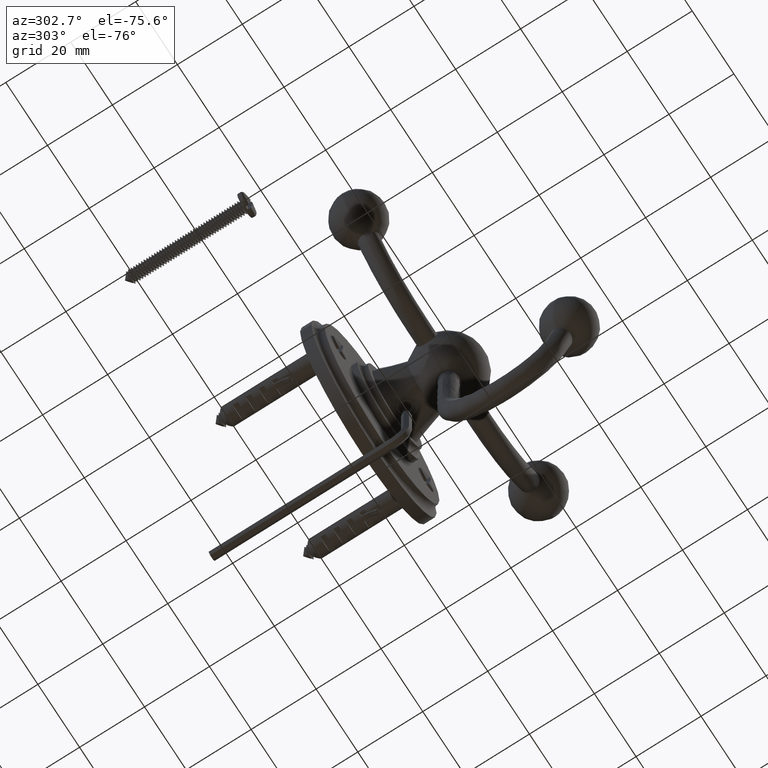
[diagram: clean part render]
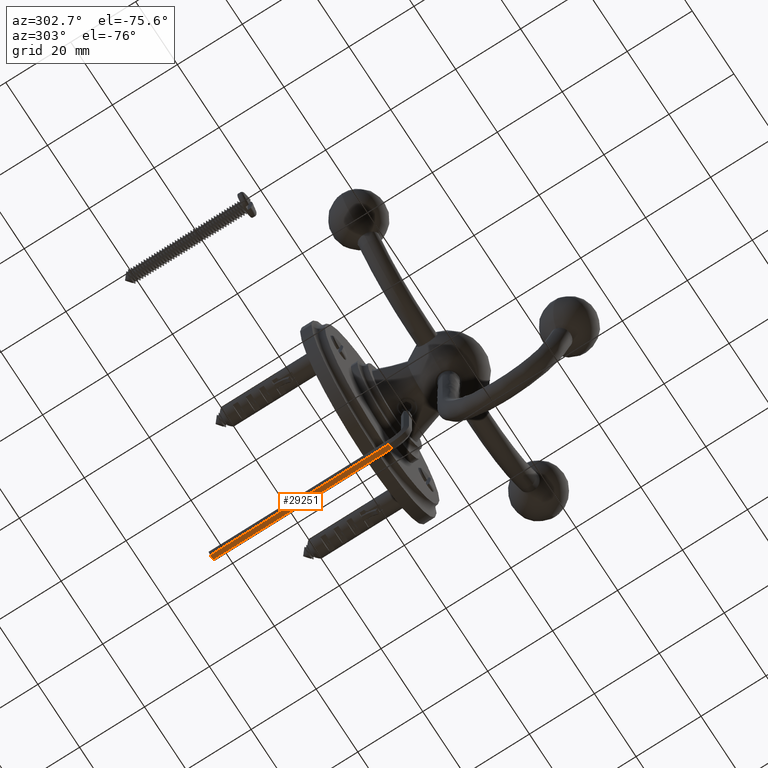
[diagram: same view with one face highlighted and labeled with its STEP entity id]
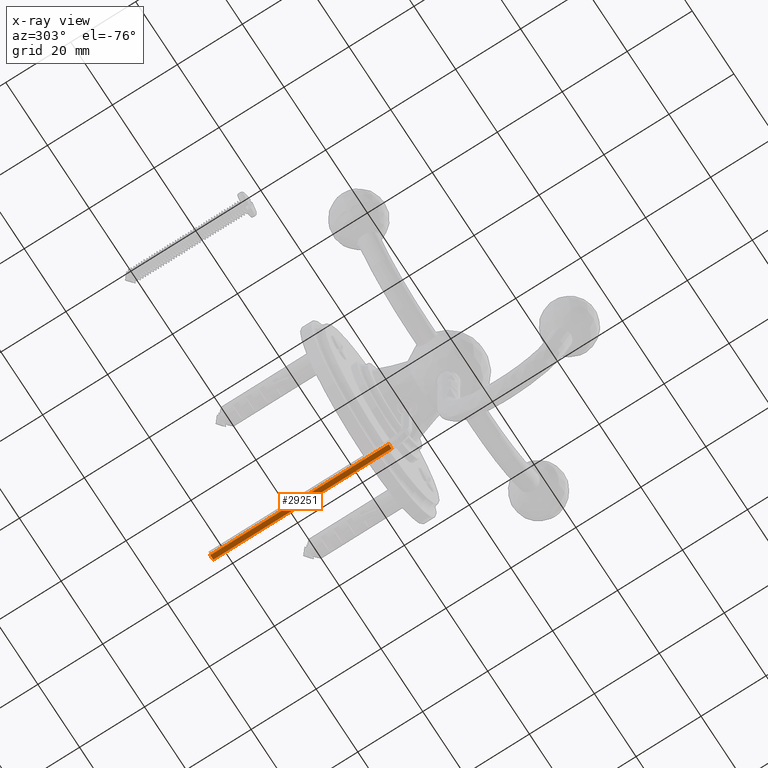
[diagram: x-ray of the same camera — body ghosted, the highlighted face saturated]
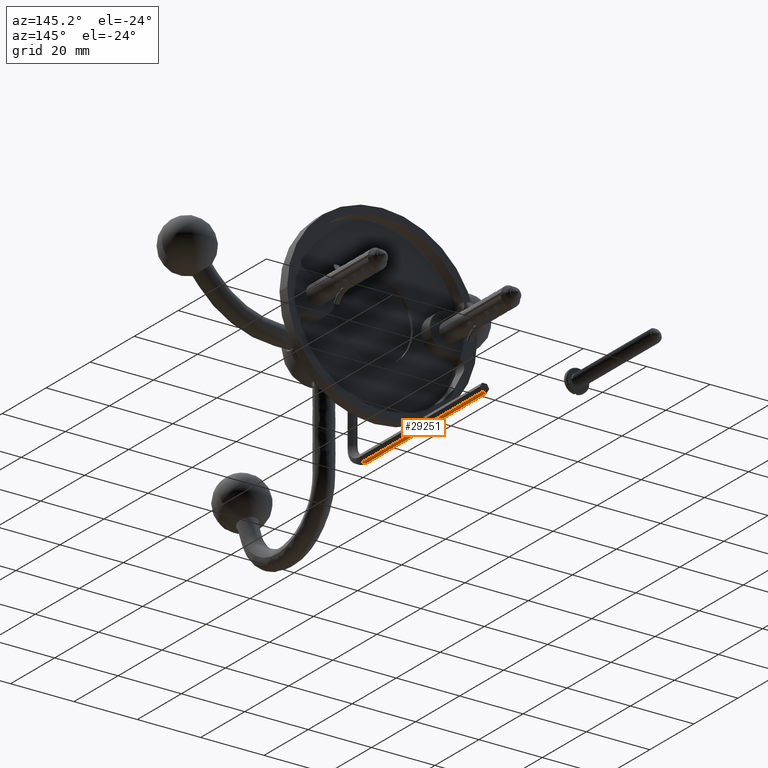
[diagram: same view with one face highlighted and labeled with its STEP entity id]
A machine part, auxiliary view. The second image highlights one B-rep face of the part: STEP entity #29251.
The next image is the same camera in x-ray: the body ghosted, the highlighted face saturated — about 0% of this face is hidden behind the body in this view.
A second angle (auxiliary view) of the same face is appended — the face is thin or edge-on in the first view.
In plain terms, the highlighted planar face has unit normal (0, 0, -1).
Its self-contained STEP definition (entity closure, byte-faithful):
#28907=DIRECTION('',(0.E0,0.E0,1.E0));
#28908=VECTOR('',#28907,5.5E1);
#28909=CARTESIAN_POINT('',(1.25E0,7.216878364870E-1,-5.5E1));
#28910=LINE('',#28909,#28908);
#28911=DIRECTION('',(0.E0,1.E0,0.E0));
#28912=VECTOR('',#28911,1.443375672974E0);
#28913=CARTESIAN_POINT('',(1.25E0,-7.216878364870E-1,-5.5E1));
#28914=LINE('',#28913,#28912);
#28915=DIRECTION('',(0.E0,0.E0,1.E0));
#28916=VECTOR('',#28915,5.5E1);
#28917=CARTESIAN_POINT('',(1.25E0,-7.216878364870E-1,-5.5E1));
#28918=LINE('',#28917,#28916);
#28939=DIRECTION('',(0.E0,1.E0,0.E0));
#28940=VECTOR('',#28939,1.443375672974E0);
#28941=CARTESIAN_POINT('',(1.25E0,-7.216878364870E-1,0.E0));
#28942=LINE('',#28941,#28940);
#28983=CARTESIAN_POINT('',(1.25E0,7.216878364870E-1,-5.5E1));
#28985=VERTEX_POINT('',#28983);
#28993=CARTESIAN_POINT('',(1.25E0,-7.216878364870E-1,-5.5E1));
#28994=VERTEX_POINT('',#28993);
#28995=CARTESIAN_POINT('',(1.25E0,7.216878364870E-1,0.E0));
#28997=VERTEX_POINT('',#28995);
#29005=CARTESIAN_POINT('',(1.25E0,-7.216878364870E-1,0.E0));
#29006=VERTEX_POINT('',#29005);
#29238=CARTESIAN_POINT('',(1.25E0,-7.216878364870E-1,-5.5E1));
#29239=DIRECTION('',(1.E0,0.E0,0.E0));
#29240=DIRECTION('',(0.E0,1.E0,0.E0));
#29241=AXIS2_PLACEMENT_3D('',#29238,#29239,#29240);
#29242=PLANE('',#29241);
#29243=ORIENTED_EDGE('',*,*,#29148,.F.);
#29245=ORIENTED_EDGE('',*,*,#29244,.T.);
#29247=ORIENTED_EDGE('',*,*,#29246,.T.);
#29248=ORIENTED_EDGE('',*,*,#29230,.F.);
#29249=EDGE_LOOP('',(#29243,#29245,#29247,#29248));
#29250=FACE_OUTER_BOUND('',#29249,.F.);
#29251=ADVANCED_FACE('',(#29250),#29242,.T.);
#29148=EDGE_CURVE('',#28994,#28985,#28914,.T.);
#29230=EDGE_CURVE('',#28985,#28997,#28910,.T.);
#29244=EDGE_CURVE('',#28994,#29006,#28918,.T.);
#29246=EDGE_CURVE('',#29006,#28997,#28942,.T.);